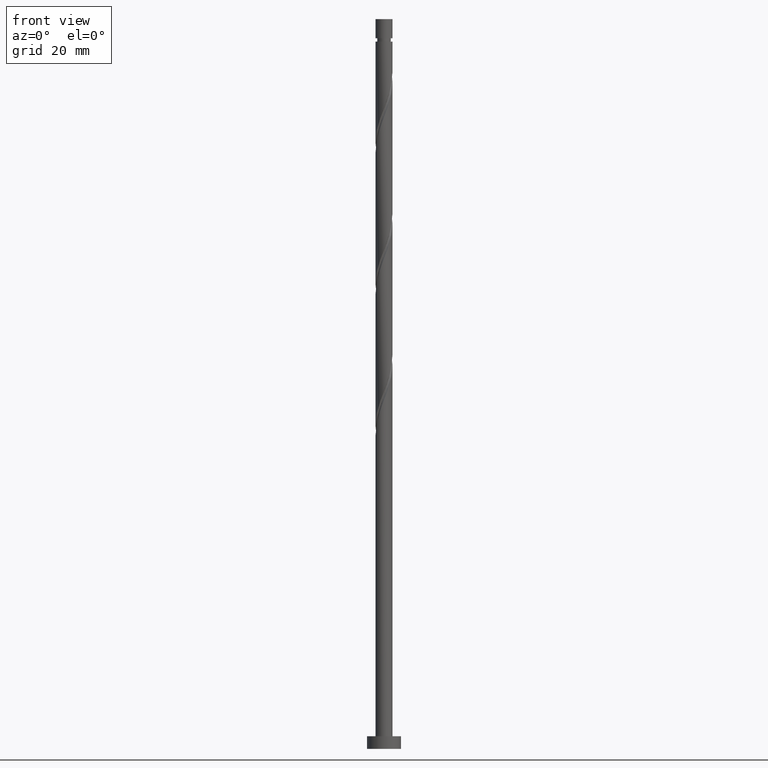
[diagram: clean part render]
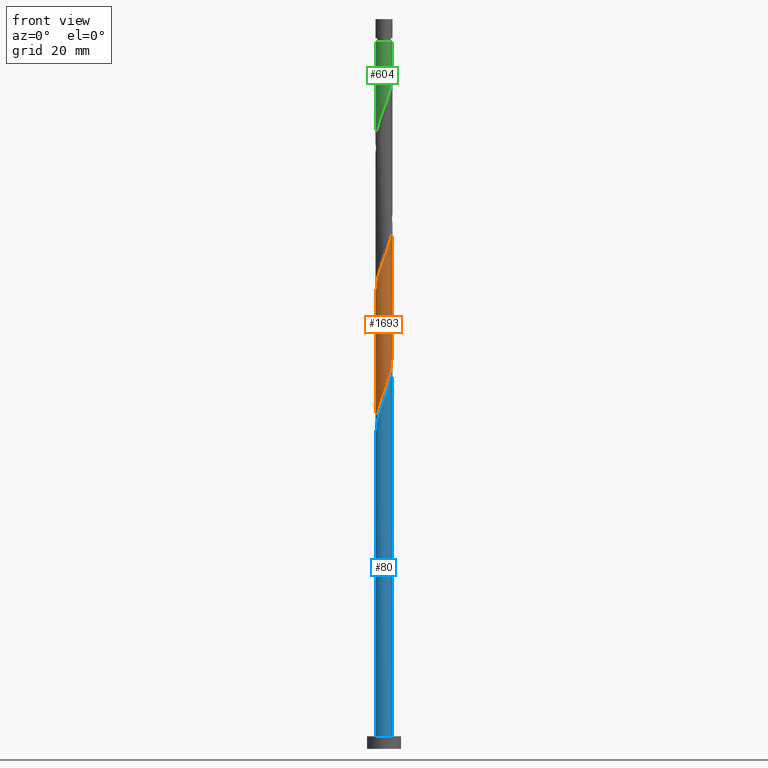
[diagram: same view with three faces highlighted in distinct colors, each labeled with its STEP entity id]
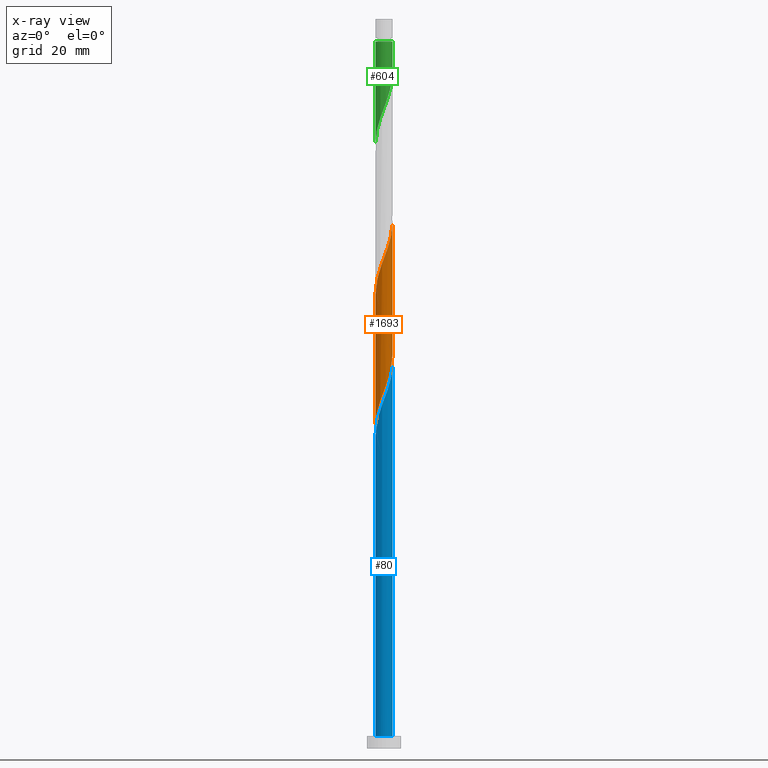
[diagram: x-ray of the same camera — body ghosted, the three highlighted faces saturated]
A machine part, front view with three faces highlighted in distinct colors.
The next image is the same camera in x-ray (body ghosted, the three faces saturated) — at least one of them is partly hidden behind the body in this view.
Their STEP definitions:

[orange] entity #1693 — the highlighted cylindrical surface (edge-blend (fillet) strip) has radius 2 mm, axis along (-0, -0, -1).
#10 = CARTESIAN_POINT ( 'NONE',  ( 0.1228517034671574026, -1.996223298870950291, 84.73985394285779194 ) ) ;
#14 = CARTESIAN_POINT ( 'NONE',  ( 1.324673758792283218, -1.498412303996177419, 119.4620761650799778 ) ) ;
#38 = CARTESIAN_POINT ( 'NONE',  ( 1.104504345536225784, -1.667354236715039573, 87.51763172063554919 ) ) ;
#55 = CARTESIAN_POINT ( 'NONE',  ( 1.980049565276634782, -0.3856594865056713894, 122.9342983873022064 ) ) ;
#59 = CARTESIAN_POINT ( 'NONE',  ( -0.8917189533347233965, -1.790205940182197031, 81.96207616507997784 ) ) ;
#144 = CARTESIAN_POINT ( 'NONE',  ( -2.000000000000001332, -0.2010075630518478595, 107.8208247679480820 ) ) ;
#149 = CARTESIAN_POINT ( 'NONE',  ( 2.000000000000000000, 2.572050924302653158E-15, 92.74786504251227370 ) ) ;
#158 = DIRECTION ( 'NONE',  ( -0.000000000000000000, -0.000000000000000000, -1.000000000000000000 ) ) ;
#208 = CARTESIAN_POINT ( 'NONE',  ( -0.3979949748426488965, -1.959999999999999520, 83.35096505396887778 ) ) ;
#217 = CARTESIAN_POINT ( 'NONE',  ( -1.521943481029063516, -1.324015695162687578, 79.87874283174669188 ) ) ;
#299 = ORIENTED_EDGE ( 'NONE', *, *, #1067, .F. ) ;
#308 = CARTESIAN_POINT ( 'NONE',  ( -1.672808912829665706, -1.127404036555502032, 110.4342983873022490 ) ) ;
#312 = VERTEX_POINT ( 'NONE', #375 ) ;
#314 = LINE ( 'NONE', #849, #631 ) ;
#325 = VERTEX_POINT ( 'NONE', #1427 ) ;
#347 = CARTESIAN_POINT ( 'NONE',  ( -1.896407278838823984, -0.6353262412077168575, 77.79540949841333486 ) ) ;
#375 = CARTESIAN_POINT ( 'NONE',  ( -2.000000000000000000, -3.050572026498495541E-15, 76.08119837584563072 ) ) ;
#420 = CARTESIAN_POINT ( 'NONE',  ( 0.6353262412077166355, -1.896407278838824206, 86.12874283174664924 ) ) ;
#447 = CARTESIAN_POINT ( 'NONE',  ( -0.1228517034671591374, -1.996223298870951846, 115.2954094984132922 ) ) ;
#476 = FACE_OUTER_BOUND ( 'NONE', #1367, .T. ) ;
#480 = CARTESIAN_POINT ( 'NONE',  ( -1.980049565276632340, -0.3856594865056687804, 77.10096505396889199 ) ) ;
#487 = VERTEX_POINT ( 'NONE', #1117 ) ;
#493 = CYLINDRICAL_SURFACE ( 'NONE', #1561, 2.000000000000000000 ) ;
#543 = CARTESIAN_POINT ( 'NONE',  ( 1.127404036555501810, -1.672808912829666150, 118.7676317206355492 ) ) ;
#555 = CARTESIAN_POINT ( 'NONE',  ( 1.324015695162687356, -1.521943481029063072, 88.21207616508000626 ) ) ;
#559 = CARTESIAN_POINT ( 'NONE',  ( 0.1399560795713519490, -2.012397032465270019, 115.9898539428577919 ) ) ;
#576 = CARTESIAN_POINT ( 'NONE',  ( 0.8849929959097652121, -1.812764992401016295, 86.82318727619109211 ) ) ;
#585 = CARTESIAN_POINT ( 'NONE',  ( 1.790205940182196809, -0.8917189533347241737, 90.29540949841330644 ) ) ;
#596 = CARTESIAN_POINT ( 'NONE',  ( -2.000000000000000000, -0.06148390331534786535, 76.24436206387377979 ) ) ;
#601 = CARTESIAN_POINT ( 'NONE',  ( 2.000000000000002220, -0.06148390331535152215, 123.7909013773973186 ) ) ;
#631 = VECTOR ( 'NONE', #158, 1000.000000000000000 ) ;
#632 = CARTESIAN_POINT ( 'NONE',  ( -1.667354236715039129, -1.104504345536226451, 79.18429838730220638 ) ) ;
#678 = CARTESIAN_POINT ( 'NONE',  ( 0.8917189533347229524, -1.790205940182200139, 118.0731872761910921 ) ) ;
#685 = CARTESIAN_POINT ( 'NONE',  ( -1.960000000000002185, -0.3979949748426488410, 108.3509650539688778 ) ) ;
#690 = CARTESIAN_POINT ( 'NONE',  ( 2.000000000000000000, 2.449293598294706414E-16, 172.0000000000000000 ) ) ;
#694 = CARTESIAN_POINT ( 'NONE',  ( -1.324015695162690243, -1.521943481029064404, 111.8231872761911205 ) ) ;
#699 = LINE ( 'NONE', #690, #1589 ) ;
#774 = CARTESIAN_POINT ( 'NONE',  ( 2.000000000000000000, 2.572050924302653158E-15, 92.74786504251228791 ) ) ;
#828 = CARTESIAN_POINT ( 'NONE',  ( -1.907602967534735461, -0.6560338701139448725, 109.0454094984133491 ) ) ;
#846 = CARTESIAN_POINT ( 'NONE',  ( -1.104504345536228449, -1.667354236715040905, 112.5176317206355350 ) ) ;
#849 = CARTESIAN_POINT ( 'NONE',  ( -2.000000000000000000, 0.000000000000000000, 172.0000000000000000 ) ) ;
#860 = CARTESIAN_POINT ( 'NONE',  ( 1.907602967534731686, -0.6560338701139462048, 90.98985394285776351 ) ) ;
#867 = CARTESIAN_POINT ( 'NONE',  ( -0.1399560795713535588, -2.012397032465268243, 84.04540949841333486 ) ) ;
#881 = CARTESIAN_POINT ( 'NONE',  ( 1.521943481029064404, -1.324015695162690243, 120.1565206095244775 ) ) ;
#935 = EDGE_CURVE ( 'NONE', #487, #1250, #699, .T. ) ;
#958 = ORIENTED_EDGE ( 'NONE', *, *, #935, .F. ) ;
#978 = EDGE_CURVE ( 'NONE', #325, #312, #314, .T. ) ;
#992 = ORIENTED_EDGE ( 'NONE', *, *, #1569, .F. ) ;
#994 = DIRECTION ( 'NONE',  ( -1.000000000000000000, 0.000000000000000000, 0.000000000000000000 ) ) ;
#1018 = CARTESIAN_POINT ( 'NONE',  ( -0.6560338701139455386, -1.907602967534732130, 82.65652060952446334 ) ) ;
#1029 = CARTESIAN_POINT ( 'NONE',  ( -1.324673758792282552, -1.498412303996174311, 80.57318727619112053 ) ) ;
#1067 = EDGE_CURVE ( 'NONE', #1250, #312, #1487, .T. ) ;
#1100 = CARTESIAN_POINT ( 'NONE',  ( 0.6560338701139447615, -1.907602967534735461, 117.3787428317466635 ) ) ;
#1115 = CARTESIAN_POINT ( 'NONE',  ( 0.3856594865056682253, -1.980049565276633006, 85.43429838730222059 ) ) ;
#1117 = CARTESIAN_POINT ( 'NONE',  ( 2.000000000000002665, 3.514139344250696490E-16, 123.9540650654254677 ) ) ;
#1120 = CARTESIAN_POINT ( 'NONE',  ( -1.498412303996177419, -1.324673758792283440, 111.1287428317466350 ) ) ;
#1223 = CARTESIAN_POINT ( 'NONE',  ( 1.959999999999999520, -0.3979949748426491185, 91.68429838730222059 ) ) ;
#1226 = CARTESIAN_POINT ( 'NONE',  ( -1.790205940182199695, -0.8917189533347235075, 109.7398539428577351 ) ) ;
#1229 = CARTESIAN_POINT ( 'NONE',  ( 1.999999999999999112, -0.2010075630518473044, 92.21443867332300215 ) ) ;
#1234 = CARTESIAN_POINT ( 'NONE',  ( -0.8849929959097676546, -1.812764992401018294, 113.2120761650799921 ) ) ;
#1246 = CARTESIAN_POINT ( 'NONE',  ( 1.498412303996174311, -1.324673758792282552, 88.90652060952440650 ) ) ;
#1250 = VERTEX_POINT ( 'NONE', #774 ) ;
#1261 = CARTESIAN_POINT ( 'NONE',  ( 1.812764992401018072, -0.8849929959097677656, 121.5454094984133633 ) ) ;
#1347 = CARTESIAN_POINT ( 'NONE',  ( 0.3979949748426485634, -1.960000000000002185, 116.6842983873021780 ) ) ;
#1367 = EDGE_LOOP ( 'NONE', ( #958, #992, #1498, #299 ) ) ;
#1375 =( BOUNDED_CURVE ( )  B_SPLINE_CURVE ( 2, ( #1517, #144, #685, #828, #1226, #308, #1120, #694, #846, #1234, #1657, #1386, #447, #559, #1347, #1100, #678, #543, #14, #881, #1686, #1261, #1676, #55, #1703, #601, #1429 ),
 .UNSPECIFIED., .F., .T. ) 
 B_SPLINE_CURVE_WITH_KNOTS ( ( 3, 2, 2, 2, 2, 2, 2, 2, 2, 2, 2, 2, 2, 3 ),
 ( 0.3045317669814465167, 0.3125000000000000000, 0.3229166666666666297, 0.3333333333333333703, 0.3437500000000000000, 0.3541666666666666297, 0.3645833333333333703, 0.3750000000000000000, 0.3854166666666666297, 0.3958333333333333703, 0.4062500000000000000, 0.4166666666666666297, 0.4270833333333333703, 0.4295317669814461836 ),
 .UNSPECIFIED. ) 
 CURVE ( )  GEOMETRIC_REPRESENTATION_ITEM ( )  RATIONAL_B_SPLINE_CURVE ( ( 0.9062941362546503843, 0.9031415850403549106, 0.9090909090909304879, 0.9013135103398485226, 0.9090909090909304879, 0.9013135103398485226, 0.9090909090909304879, 0.9013135103398485226, 0.9090909090909304879, 0.9013135103398485226, 0.9090909090909304879, 0.9013135103398485226, 0.9090909090909304879, 0.9013135103398485226, 0.9090909090909304879, 0.9013135103398485226, 0.9090909090909304879, 0.9013135103398485226, 0.9090909090909304879, 0.9013135103398485226, 0.9090909090909304879, 0.9013135103398485226, 0.9090909090909304879, 0.9013135103398485226, 0.9090909090909304879, 0.9072628343904242110, 0.9062941362546507174 ) ) 
 REPRESENTATION_ITEM ( '' )  );
#1381 = CARTESIAN_POINT ( 'NONE',  ( 1.672808912829662376, -1.127404036555502920, 89.60096505396889199 ) ) ;
#1386 = CARTESIAN_POINT ( 'NONE',  ( -0.3856594865056702792, -1.980049565276635226, 114.6009650539688920 ) ) ;
#1427 = CARTESIAN_POINT ( 'NONE',  ( -2.000000000000002665, -1.607531827689148313E-15, 107.2873983987588389 ) ) ;
#1429 = CARTESIAN_POINT ( 'NONE',  ( 2.000000000000002665, 3.514139344250696490E-16, 123.9540650654254677 ) ) ;
#1487 =( BOUNDED_CURVE ( )  B_SPLINE_CURVE ( 2, ( #149, #1229, #1223, #860, #585, #1381, #1246, #555, #38, #576, #420, #1115, #10, #867, #208, #1018, #59, #1690, #1029, #217, #632, #1543, #347, #480, #1709, #596, #1698 ),
 .UNSPECIFIED., .F., .T. ) 
 B_SPLINE_CURVE_WITH_KNOTS ( ( 3, 2, 2, 2, 2, 2, 2, 2, 2, 2, 2, 2, 2, 3 ),
 ( 0.8045317669814464612, 0.8125000000000000000, 0.8229166666666666297, 0.8333333333333333703, 0.8437500000000000000, 0.8541666666666666297, 0.8645833333333333703, 0.8750000000000000000, 0.8854166666666666297, 0.8958333333333333703, 0.9062500000000000000, 0.9166666666666666297, 0.9270833333333333703, 0.9295317669814462391 ),
 .UNSPECIFIED. ) 
 CURVE ( )  GEOMETRIC_REPRESENTATION_ITEM ( )  RATIONAL_B_SPLINE_CURVE ( ( 0.9062941362546449442, 0.9031415850403493595, 0.9090909090909247148, 0.9013135103398430825, 0.9090909090909247148, 0.9013135103398430825, 0.9090909090909247148, 0.9013135103398430825, 0.9090909090909247148, 0.9013135103398430825, 0.9090909090909247148, 0.9013135103398430825, 0.9090909090909247148, 0.9013135103398430825, 0.9090909090909247148, 0.9013135103398430825, 0.9090909090909247148, 0.9013135103398430825, 0.9090909090909247148, 0.9013135103398430825, 0.9090909090909247148, 0.9013135103398430825, 0.9090909090909247148, 0.9013135103398430825, 0.9090909090909247148, 0.9072628343904185488, 0.9062941362546450552 ) ) 
 REPRESENTATION_ITEM ( '' )  );
#1495 = DIRECTION ( 'NONE',  ( -0.000000000000000000, -0.000000000000000000, -1.000000000000000000 ) ) ;
#1498 = ORIENTED_EDGE ( 'NONE', *, *, #978, .T. ) ;
#1517 = CARTESIAN_POINT ( 'NONE',  ( -2.000000000000002665, -1.607531827689148313E-15, 107.2873983987588389 ) ) ;
#1543 = CARTESIAN_POINT ( 'NONE',  ( -1.812764992401016295, -0.8849929959097652121, 78.48985394285779194 ) ) ;
#1555 = DIRECTION ( 'NONE',  ( -0.000000000000000000, -0.000000000000000000, -1.000000000000000000 ) ) ;
#1561 = AXIS2_PLACEMENT_3D ( 'NONE', #1667, #1555, #994 ) ;
#1569 = EDGE_CURVE ( 'NONE', #325, #487, #1375, .T. ) ;
#1589 = VECTOR ( 'NONE', #1495, 1000.000000000000000 ) ;
#1657 = CARTESIAN_POINT ( 'NONE',  ( -0.6353262412077193000, -1.896407278838825983, 113.9065206095244207 ) ) ;
#1667 = CARTESIAN_POINT ( 'NONE',  ( 0.000000000000000000, 0.000000000000000000, 172.0000000000000000 ) ) ;
#1676 = CARTESIAN_POINT ( 'NONE',  ( 1.896407278838825983, -0.6353262412077195220, 122.2398539428577635 ) ) ;
#1686 = CARTESIAN_POINT ( 'NONE',  ( 1.667354236715040683, -1.104504345536229115, 120.8509650539688778 ) ) ;
#1690 = CARTESIAN_POINT ( 'NONE',  ( -1.127404036555501810, -1.672808912829662820, 81.26763172063556340 ) ) ;
#1693 = ADVANCED_FACE ( 'NONE', ( #476 ), #493, .T. ) ;
#1698 = CARTESIAN_POINT ( 'NONE',  ( -2.000000000000000000, -3.050572026498495541E-15, 76.08119837584563072 ) ) ;
#1703 = CARTESIAN_POINT ( 'NONE',  ( 1.996223298870951846, -0.1228517034671601643, 123.6287428317466635 ) ) ;
#1709 = CARTESIAN_POINT ( 'NONE',  ( -1.996223298870949403, -0.1228517034671579716, 76.40652060952444913 ) ) ;

[blue] entity #80 — the highlighted cylindrical surface (edge-blend (fillet) strip) has radius 2 mm, axis along (-0, -0, -1).
#19 = CARTESIAN_POINT ( 'NONE',  ( 2.000000000000002665, 3.514139344250696490E-16, 90.62073173209213905 ) ) ;
#28 = CARTESIAN_POINT ( 'NONE',  ( 0.6560338701139447615, -1.907602967534735461, 84.04540949841334907 ) ) ;
#30 = DIRECTION ( 'NONE',  ( 1.000000000000000000, 0.000000000000000000, 0.000000000000000000 ) ) ;
#48 = ORIENTED_EDGE ( 'NONE', *, *, #568, .F. ) ;
#52 = CARTESIAN_POINT ( 'NONE',  ( 2.000000000000000000, 2.449293598294706414E-16, 3.000000000000000000 ) ) ;
#80 = ADVANCED_FACE ( 'NONE', ( #1677 ), #1262, .T. ) ;
#121 = CARTESIAN_POINT ( 'NONE',  ( -1.324015695162690243, -1.521943481029064404, 78.48985394285777772 ) ) ;
#166 = CARTESIAN_POINT ( 'NONE',  ( 0.8917189533347229524, -1.790205940182200139, 84.73985394285777772 ) ) ;
#197 = DIRECTION ( 'NONE',  ( -0.000000000000000000, -0.000000000000000000, -1.000000000000000000 ) ) ;
#203 = DIRECTION ( 'NONE',  ( -0.000000000000000000, -0.000000000000000000, -1.000000000000000000 ) ) ;
#251 = CARTESIAN_POINT ( 'NONE',  ( -1.907602967534735461, -0.6560338701139448725, 75.71207616507997784 ) ) ;
#266 = CARTESIAN_POINT ( 'NONE',  ( -1.672808912829665706, -1.127404036555502032, 77.10096505396889199 ) ) ;
#317 = ORIENTED_EDGE ( 'NONE', *, *, #829, .F. ) ;
#397 = CARTESIAN_POINT ( 'NONE',  ( -1.790205940182199695, -0.8917189533347235075, 76.40652060952440650 ) ) ;
#403 = EDGE_CURVE ( 'NONE', #1438, #455, #1749, .T. ) ;
#434 = LINE ( 'NONE', #557, #735 ) ;
#443 = CARTESIAN_POINT ( 'NONE',  ( 0.3979949748426485634, -1.960000000000002185, 83.35096505396886357 ) ) ;
#448 = DIRECTION ( 'NONE',  ( -1.000000000000000000, 0.000000000000000000, 0.000000000000000000 ) ) ;
#452 = CARTESIAN_POINT ( 'NONE',  ( 1.812764992401018072, -0.8849929959097677656, 88.21207616507999205 ) ) ;
#455 = VERTEX_POINT ( 'NONE', #52 ) ;
#489 = LINE ( 'NONE', #1170, #962 ) ;
#517 = CARTESIAN_POINT ( 'NONE',  ( -2.000000000000002665, -0.2010075630518437240, 74.48749143461476763 ) ) ;
#527 = CARTESIAN_POINT ( 'NONE',  ( -0.1228517034671591374, -1.996223298870951846, 81.96207616507996363 ) ) ;
#533 = ORIENTED_EDGE ( 'NONE', *, *, #403, .T. ) ;
#548 = CARTESIAN_POINT ( 'NONE',  ( 1.996223298870951846, -0.1228517034671601643, 90.29540949841329223 ) ) ;
#557 = CARTESIAN_POINT ( 'NONE',  ( 2.000000000000000000, 2.449293598294706414E-16, 172.0000000000000000 ) ) ;
#568 = EDGE_CURVE ( 'NONE', #1507, #455, #434, .T. ) ;
#592 = AXIS2_PLACEMENT_3D ( 'NONE', #872, #203, #448 ) ;
#659 = CARTESIAN_POINT ( 'NONE',  ( -1.104504345536228449, -1.667354236715040905, 79.18429838730220638 ) ) ;
#700 = ORIENTED_EDGE ( 'NONE', *, *, #1086, .T. ) ;
#708 = CARTESIAN_POINT ( 'NONE',  ( 1.667354236715040683, -1.104504345536229115, 87.51763172063554919 ) ) ;
#717 = CARTESIAN_POINT ( 'NONE',  ( 2.000000000000002665, 3.514139344250696490E-16, 90.62073173209213905 ) ) ;
#721 = CARTESIAN_POINT ( 'NONE',  ( 1.980049565276634782, -0.3856594865056713894, 89.60096505396889199 ) ) ;
#723 = CARTESIAN_POINT ( 'NONE',  ( 0.000000000000000000, 0.000000000000000000, 3.000000000000000000 ) ) ;
#735 = VECTOR ( 'NONE', #1374, 1000.000000000000000 ) ;
#785 = CARTESIAN_POINT ( 'NONE',  ( -2.000000000000002665, -1.607531827689148313E-15, 73.95406506542548186 ) ) ;
#811 = CARTESIAN_POINT ( 'NONE',  ( -0.8849929959097676546, -1.812764992401018294, 79.87874283174669188 ) ) ;
#824 = CARTESIAN_POINT ( 'NONE',  ( 1.521943481029064404, -1.324015695162690243, 86.82318727619107790 ) ) ;
#829 = EDGE_CURVE ( 'NONE', #1097, #1507, #1729, .T. ) ;
#872 = CARTESIAN_POINT ( 'NONE',  ( 0.000000000000000000, 0.000000000000000000, 172.0000000000000000 ) ) ;
#920 = EDGE_LOOP ( 'NONE', ( #48, #317, #700, #533 ) ) ;
#938 = CARTESIAN_POINT ( 'NONE',  ( -1.498412303996177419, -1.324673758792283440, 77.79540949841330644 ) ) ;
#962 = VECTOR ( 'NONE', #197, 1000.000000000000000 ) ;
#979 = CARTESIAN_POINT ( 'NONE',  ( 1.127404036555501810, -1.672808912829666150, 85.43429838730222059 ) ) ;
#1056 = CARTESIAN_POINT ( 'NONE',  ( -1.960000000000002185, -0.3979949748426488410, 75.01763172063550655 ) ) ;
#1086 = EDGE_CURVE ( 'NONE', #1097, #1438, #489, .T. ) ;
#1097 = VERTEX_POINT ( 'NONE', #1283 ) ;
#1170 = CARTESIAN_POINT ( 'NONE',  ( -2.000000000000000000, 0.000000000000000000, 172.0000000000000000 ) ) ;
#1197 = CARTESIAN_POINT ( 'NONE',  ( -0.6353262412077193000, -1.896407278838825983, 80.57318727619110632 ) ) ;
#1240 = DIRECTION ( 'NONE',  ( 0.000000000000000000, 0.000000000000000000, 1.000000000000000000 ) ) ;
#1256 = CARTESIAN_POINT ( 'NONE',  ( 1.896407278838825983, -0.6353262412077195220, 88.90652060952444913 ) ) ;
#1262 = CYLINDRICAL_SURFACE ( 'NONE', #592, 2.000000000000000000 ) ;
#1283 = CARTESIAN_POINT ( 'NONE',  ( -2.000000000000002665, -1.607531827689148313E-15, 73.95406506542548186 ) ) ;
#1374 = DIRECTION ( 'NONE',  ( -0.000000000000000000, -0.000000000000000000, -1.000000000000000000 ) ) ;
#1377 = CARTESIAN_POINT ( 'NONE',  ( -2.000000000000000000, 0.000000000000000000, 3.000000000000000000 ) ) ;
#1399 = CARTESIAN_POINT ( 'NONE',  ( 1.324673758792283218, -1.498412303996177419, 86.12874283174666346 ) ) ;
#1438 = VERTEX_POINT ( 'NONE', #1377 ) ;
#1507 = VERTEX_POINT ( 'NONE', #717 ) ;
#1520 = CARTESIAN_POINT ( 'NONE',  ( 2.000000000000002665, -0.06148390331534733799, 90.45756804406398999 ) ) ;
#1605 = AXIS2_PLACEMENT_3D ( 'NONE', #723, #1240, #30 ) ;
#1653 = CARTESIAN_POINT ( 'NONE',  ( 0.1399560795713519490, -2.012397032465270019, 82.65652060952444913 ) ) ;
#1677 = FACE_OUTER_BOUND ( 'NONE', #920, .T. ) ;
#1729 =( BOUNDED_CURVE ( )  B_SPLINE_CURVE ( 2, ( #785, #517, #1056, #251, #397, #266, #938, #121, #659, #811, #1197, #1738, #527, #1653, #443, #28, #166, #979, #1399, #824, #708, #452, #1256, #721, #548, #1520, #19 ),
 .UNSPECIFIED., .F., .T. ) 
 B_SPLINE_CURVE_WITH_KNOTS ( ( 3, 2, 2, 2, 2, 2, 2, 2, 2, 2, 2, 2, 2, 3 ),
 ( 0.05453176698144635015, 0.06250000000000000000, 0.07291666666666662966, 0.08333333333333337034, 0.09375000000000000000, 0.1041666666666666297, 0.1145833333333333703, 0.1250000000000000000, 0.1354166666666666297, 0.1458333333333333703, 0.1562500000000000000, 0.1666666666666666297, 0.1770833333333333703, 0.1795317669814463502 ),
 .UNSPECIFIED. ) 
 CURVE ( )  GEOMETRIC_REPRESENTATION_ITEM ( )  RATIONAL_B_SPLINE_CURVE ( ( 0.9062941362546506063, 0.9031415850403547996, 0.9090909090909304879, 0.9013135103398485226, 0.9090909090909304879, 0.9013135103398485226, 0.9090909090909304879, 0.9013135103398485226, 0.9090909090909304879, 0.9013135103398485226, 0.9090909090909304879, 0.9013135103398485226, 0.9090909090909304879, 0.9013135103398485226, 0.9090909090909304879, 0.9013135103398485226, 0.9090909090909304879, 0.9013135103398485226, 0.9090909090909304879, 0.9013135103398485226, 0.9090909090909304879, 0.9013135103398485226, 0.9090909090909304879, 0.9013135103398485226, 0.9090909090909304879, 0.9072628343904241000, 0.9062941362546506063 ) ) 
 REPRESENTATION_ITEM ( '' )  );
#1738 = CARTESIAN_POINT ( 'NONE',  ( -0.3856594865056702792, -1.980049565276635226, 81.26763172063556340 ) ) ;
#1749 = CIRCLE ( 'NONE', #1605, 2.000000000000000000 ) ;

[green] entity #604 — the highlighted cylindrical surface (edge-blend (fillet) strip) has radius 2 mm, axis along (-0, -0, -1).
#84 = CARTESIAN_POINT ( 'NONE',  ( 2.000000000000000000, 2.449293598294706414E-16, 172.0000000000000000 ) ) ;
#101 = CARTESIAN_POINT ( 'NONE',  ( 1.907602967534731686, -0.6560338701139462048, 157.6565206095244491 ) ) ;
#126 = CARTESIAN_POINT ( 'NONE',  ( -1.667354236715039129, -1.104504345536226451, 145.8509650539688494 ) ) ;
#178 = DIRECTION ( 'NONE',  ( -1.000000000000000000, 0.000000000000000000, 0.000000000000000000 ) ) ;
#229 = AXIS2_PLACEMENT_3D ( 'NONE', #1634, #973, #1536 ) ;
#241 = CARTESIAN_POINT ( 'NONE',  ( 0.1228517034671574026, -1.996223298870950291, 151.4065206095244491 ) ) ;
#253 = CARTESIAN_POINT ( 'NONE',  ( 1.104504345536225784, -1.667354236715039573, 154.1842983873021922 ) ) ;
#306 = DIRECTION ( 'NONE',  ( -0.000000000000000000, -0.000000000000000000, -1.000000000000000000 ) ) ;
#324 = CYLINDRICAL_SURFACE ( 'NONE', #903, 2.000000000000000000 ) ;
#359 = CARTESIAN_POINT ( 'NONE',  ( -1.999999999999992228, 0.000000000000000000, 166.6842983873022206 ) ) ;
#365 = EDGE_CURVE ( 'NONE', #636, #797, #1663, .T. ) ;
#370 = CARTESIAN_POINT ( 'NONE',  ( -0.6560338701139455386, -1.907602967534732130, 149.3231872761911632 ) ) ;
#378 = CARTESIAN_POINT ( 'NONE',  ( -1.521943481029063516, -1.324015695162687578, 146.5454094984133633 ) ) ;
#386 = CARTESIAN_POINT ( 'NONE',  ( 0.6353262412077166355, -1.896407278838824206, 152.7954094984133064 ) ) ;
#390 = CARTESIAN_POINT ( 'NONE',  ( -2.000000000000000000, -9.271346355044444952E-16, 142.7478650425123021 ) ) ;
#460 = LINE ( 'NONE', #84, #1307 ) ;
#474 = VERTEX_POINT ( 'NONE', #1383 ) ;
#479 = CARTESIAN_POINT ( 'NONE',  ( 1.999999999999992228, 2.449293598294701484E-16, 166.6842983873022206 ) ) ;
#529 = CARTESIAN_POINT ( 'NONE',  ( -1.127404036555501810, -1.672808912829662820, 147.9342983873022206 ) ) ;
#536 = CARTESIAN_POINT ( 'NONE',  ( -1.980049565276632340, -0.3856594865056687804, 143.7676317206355634 ) ) ;
#595 = EDGE_CURVE ( 'NONE', #1211, #636, #982, .T. ) ;
#604 = ADVANCED_FACE ( 'NONE', ( #965 ), #324, .T. ) ;
#636 = VERTEX_POINT ( 'NONE', #359 ) ;
#639 = CARTESIAN_POINT ( 'NONE',  ( -0.8917189533347233965, -1.790205940182197031, 148.6287428317467061 ) ) ;
#671 = CARTESIAN_POINT ( 'NONE',  ( -0.1399560795713535588, -2.012397032465268243, 150.7120761650800205 ) ) ;
#714 = ORIENTED_EDGE ( 'NONE', *, *, #365, .T. ) ;
#736 = DIRECTION ( 'NONE',  ( -0.000000000000000000, -0.000000000000000000, -1.000000000000000000 ) ) ;
#794 = ORIENTED_EDGE ( 'NONE', *, *, #1345, .F. ) ;
#797 = VERTEX_POINT ( 'NONE', #390 ) ;
#801 = CARTESIAN_POINT ( 'NONE',  ( -2.000000000000000000, -0.06148390331534819842, 142.9110287305404654 ) ) ;
#903 = AXIS2_PLACEMENT_3D ( 'NONE', #1506, #1393, #178 ) ;
#919 = CARTESIAN_POINT ( 'NONE',  ( 1.790205940182196809, -0.8917189533347241737, 156.9620761650800205 ) ) ;
#933 = CARTESIAN_POINT ( 'NONE',  ( -1.896407278838823984, -0.6353262412077168575, 144.4620761650799352 ) ) ;
#940 = CARTESIAN_POINT ( 'NONE',  ( -1.812764992401016295, -0.8849929959097652121, 145.1565206095244207 ) ) ;
#965 = FACE_OUTER_BOUND ( 'NONE', #1357, .T. ) ;
#973 = DIRECTION ( 'NONE',  ( -0.000000000000000000, -0.000000000000000000, -1.000000000000000000 ) ) ;
#982 = CIRCLE ( 'NONE', #229, 1.999999999999992228 ) ;
#1034 = ORIENTED_EDGE ( 'NONE', *, *, #595, .T. ) ;
#1044 = CARTESIAN_POINT ( 'NONE',  ( 2.000000000000000000, 4.411366410867922406E-16, 159.4145317091789593 ) ) ;
#1077 = CARTESIAN_POINT ( 'NONE',  ( 1.959999999999999520, -0.3979949748426491185, 158.3509650539688778 ) ) ;
#1089 = ORIENTED_EDGE ( 'NONE', *, *, #1251, .F. ) ;
#1211 = VERTEX_POINT ( 'NONE', #479 ) ;
#1249 = CARTESIAN_POINT ( 'NONE',  ( -2.000000000000000000, 0.000000000000000000, 172.0000000000000000 ) ) ;
#1251 = EDGE_CURVE ( 'NONE', #1211, #474, #460, .T. ) ;
#1265 = VECTOR ( 'NONE', #306, 1000.000000000000000 ) ;
#1307 = VECTOR ( 'NONE', #736, 1000.000000000000000 ) ;
#1317 = CARTESIAN_POINT ( 'NONE',  ( 0.3856594865056682253, -1.980049565276633006, 152.1009650539688778 ) ) ;
#1345 = EDGE_CURVE ( 'NONE', #474, #797, #1680, .T. ) ;
#1357 = EDGE_LOOP ( 'NONE', ( #1089, #1034, #714, #794 ) ) ;
#1383 = CARTESIAN_POINT ( 'NONE',  ( 2.000000000000000000, 4.411366410867922406E-16, 159.4145317091789593 ) ) ;
#1393 = DIRECTION ( 'NONE',  ( -0.000000000000000000, -0.000000000000000000, -1.000000000000000000 ) ) ;
#1449 = CARTESIAN_POINT ( 'NONE',  ( 1.999999999999999112, -0.2010075630518469436, 158.8811053399896593 ) ) ;
#1456 = CARTESIAN_POINT ( 'NONE',  ( -1.324673758792282552, -1.498412303996174311, 147.2398539428577351 ) ) ;
#1463 = CARTESIAN_POINT ( 'NONE',  ( 1.498412303996174311, -1.324673758792282552, 155.5731872761911347 ) ) ;
#1472 = CARTESIAN_POINT ( 'NONE',  ( 1.672808912829662376, -1.127404036555502920, 156.2676317206355918 ) ) ;
#1479 = CARTESIAN_POINT ( 'NONE',  ( -2.000000000000000000, -9.271346355044444952E-16, 142.7478650425123021 ) ) ;
#1506 = CARTESIAN_POINT ( 'NONE',  ( 0.000000000000000000, 0.000000000000000000, 172.0000000000000000 ) ) ;
#1536 = DIRECTION ( 'NONE',  ( -1.000000000000000000, 0.000000000000000000, 0.000000000000000000 ) ) ;
#1612 = CARTESIAN_POINT ( 'NONE',  ( -0.3979949748426488965, -1.959999999999999520, 150.0176317206355350 ) ) ;
#1634 = CARTESIAN_POINT ( 'NONE',  ( 0.000000000000000000, 0.000000000000000000, 166.6842983873022206 ) ) ;
#1663 = LINE ( 'NONE', #1249, #1265 ) ;
#1680 =( BOUNDED_CURVE ( )  B_SPLINE_CURVE ( 2, ( #1044, #1449, #1077, #101, #919, #1472, #1463, #1748, #253, #1735, #386, #1317, #241, #671, #1612, #370, #639, #529, #1456, #378, #126, #940, #933, #536, #1715, #801, #1479 ),
 .UNSPECIFIED., .F., .T. ) 
 B_SPLINE_CURVE_WITH_KNOTS ( ( 3, 2, 2, 2, 2, 2, 2, 2, 2, 2, 2, 2, 2, 3 ),
 ( 0.3045317669814464057, 0.3125000000000000000, 0.3229166666666666852, 0.3333333333333333148, 0.3437500000000000000, 0.3541666666666666852, 0.3645833333333333148, 0.3750000000000000000, 0.3854166666666666852, 0.3958333333333333148, 0.4062500000000000000, 0.4166666666666666852, 0.4270833333333333148, 0.4295317669814461836 ),
 .UNSPECIFIED. ) 
 CURVE ( )  GEOMETRIC_REPRESENTATION_ITEM ( )  RATIONAL_B_SPLINE_CURVE ( ( 0.9062941362546449442, 0.9031415850403494705, 0.9090909090909247148, 0.9013135103398430825, 0.9090909090909247148, 0.9013135103398430825, 0.9090909090909247148, 0.9013135103398430825, 0.9090909090909247148, 0.9013135103398430825, 0.9090909090909247148, 0.9013135103398430825, 0.9090909090909247148, 0.9013135103398430825, 0.9090909090909247148, 0.9013135103398430825, 0.9090909090909247148, 0.9013135103398430825, 0.9090909090909247148, 0.9013135103398430825, 0.9090909090909247148, 0.9013135103398430825, 0.9090909090909247148, 0.9013135103398430825, 0.9090909090909247148, 0.9072628343904185488, 0.9062941362546451662 ) ) 
 REPRESENTATION_ITEM ( '' )  );
#1715 = CARTESIAN_POINT ( 'NONE',  ( -1.996223298870949403, -0.1228517034671579716, 143.0731872761911063 ) ) ;
#1735 = CARTESIAN_POINT ( 'NONE',  ( 0.8849929959097652121, -1.812764992401016295, 153.4898539428577919 ) ) ;
#1748 = CARTESIAN_POINT ( 'NONE',  ( 1.324015695162687356, -1.521943481029063072, 154.8787428317466777 ) ) ;